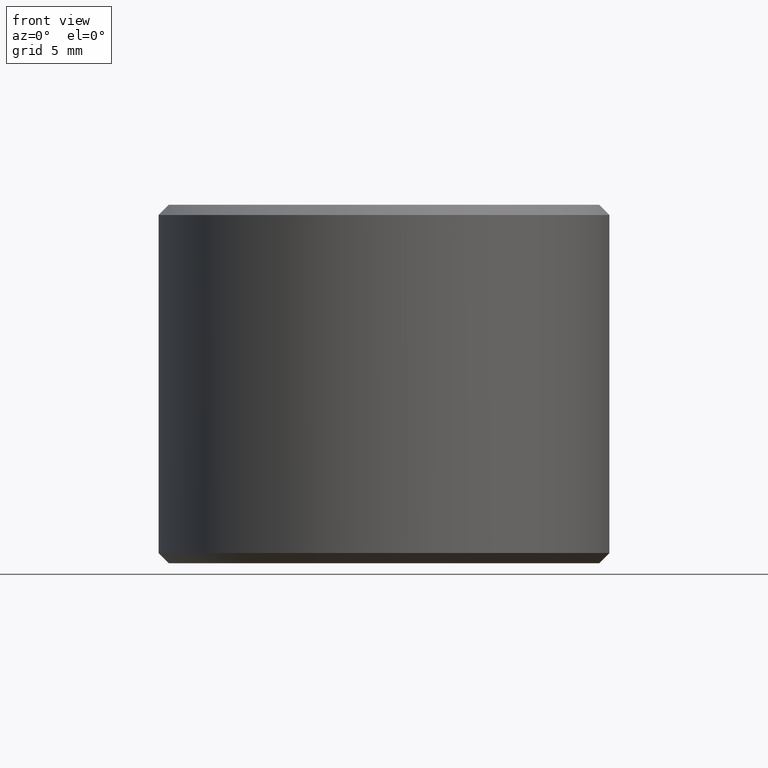
[diagram: clean part render]
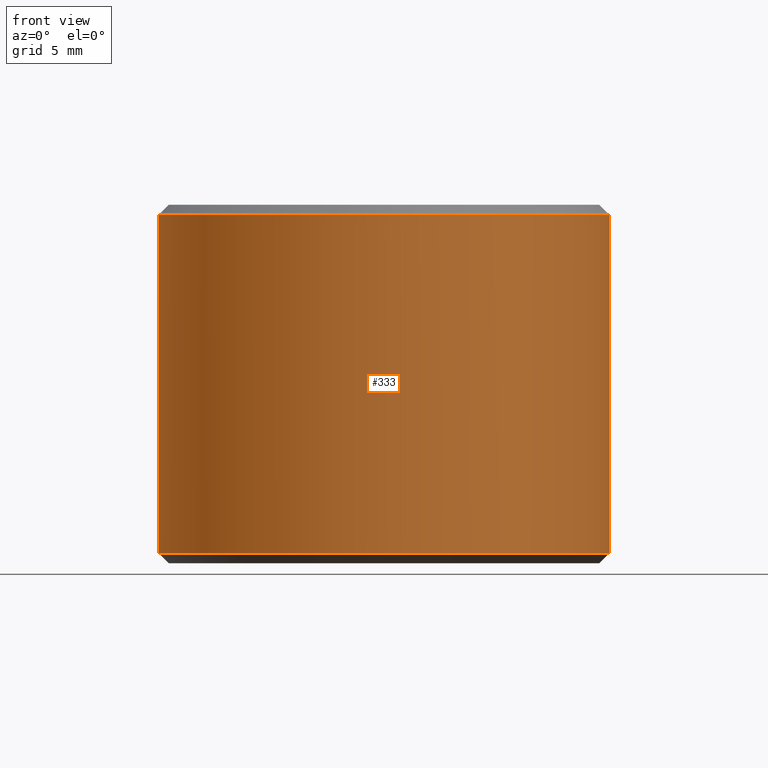
[diagram: same view with one face highlighted and labeled with its STEP entity id]
A machine part, front view. The second image highlights one B-rep face of the part: STEP entity #333.
In plain terms, the highlighted cylindrical surface (partial cylindrical patch) has radius 11 mm, axis along (-0, -0, 1).
Its self-contained STEP definition (entity closure, byte-faithful):
#3 = DIRECTION ( 'NONE',  ( -0.0000000000000000000, -0.0000000000000000000, 1.000000000000000000 ) ) ;
#25 = AXIS2_PLACEMENT_3D ( 'NONE', #180, #100, #320 ) ;
#36 = VERTEX_POINT ( 'NONE', #75 ) ;
#39 = VERTEX_POINT ( 'NONE', #102 ) ;
#41 = LINE ( 'NONE', #229, #224 ) ;
#46 = EDGE_CURVE ( 'NONE', #290, #39, #238, .T. ) ;
#51 = CYLINDRICAL_SURFACE ( 'NONE', #272, 11.00000000000006600 ) ;
#75 = CARTESIAN_POINT ( 'NONE',  ( -11.00000000000006600, 1.347111479062096500E-015, 0.4999999999997228900 ) ) ;
#90 = EDGE_CURVE ( 'NONE', #334, #39, #214, .T. ) ;
#100 = DIRECTION ( 'NONE',  ( -0.0000000000000000000, -0.0000000000000000000, 1.000000000000000000 ) ) ;
#102 = CARTESIAN_POINT ( 'NONE',  ( 11.00000000000006400, 0.0000000000000000000, 17.00000000000044400 ) ) ;
#103 = DIRECTION ( 'NONE',  ( -0.0000000000000000000, -0.0000000000000000000, 1.000000000000000000 ) ) ;
#118 = DIRECTION ( 'NONE',  ( -0.0000000000000000000, -0.0000000000000000000, 1.000000000000000000 ) ) ;
#121 = VECTOR ( 'NONE', #103, 1000.000000000000000 ) ;
#122 = CIRCLE ( 'NONE', #25, 11.00000000000006600 ) ;
#123 = CARTESIAN_POINT ( 'NONE',  ( 11.00000000000006600, 0.0000000000000000000, 116.0570158932235600 ) ) ;
#135 = EDGE_LOOP ( 'NONE', ( #280, #142, #332, #221 ) ) ;
#142 = ORIENTED_EDGE ( 'NONE', *, *, #246, .T. ) ;
#171 = DIRECTION ( 'NONE',  ( 1.000000000000000000, 0.0000000000000000000, 0.0000000000000000000 ) ) ;
#180 = CARTESIAN_POINT ( 'NONE',  ( 0.0000000000000000000, 0.0000000000000000000, 0.4999999999997228900 ) ) ;
#214 = CIRCLE ( 'NONE', #276, 11.00000000000006400 ) ;
#221 = ORIENTED_EDGE ( 'NONE', *, *, #90, .F. ) ;
#224 = VECTOR ( 'NONE', #264, 1000.000000000000000 ) ;
#229 = CARTESIAN_POINT ( 'NONE',  ( -11.00000000000006600, 1.347111479062096500E-015, 116.0570158932235600 ) ) ;
#238 = LINE ( 'NONE', #123, #121 ) ;
#246 = EDGE_CURVE ( 'NONE', #36, #290, #122, .T. ) ;
#261 = CARTESIAN_POINT ( 'NONE',  ( 11.00000000000006600, 0.0000000000000000000, 0.4999999999997228900 ) ) ;
#264 = DIRECTION ( 'NONE',  ( -0.0000000000000000000, -0.0000000000000000000, 1.000000000000000000 ) ) ;
#269 = EDGE_CURVE ( 'NONE', #36, #334, #41, .T. ) ;
#272 = AXIS2_PLACEMENT_3D ( 'NONE', #289, #118, #171 ) ;
#276 = AXIS2_PLACEMENT_3D ( 'NONE', #330, #3, #305 ) ;
#280 = ORIENTED_EDGE ( 'NONE', *, *, #269, .F. ) ;
#287 = FACE_OUTER_BOUND ( 'NONE', #135, .T. ) ;
#289 = CARTESIAN_POINT ( 'NONE',  ( 0.0000000000000000000, 0.0000000000000000000, 116.0570158932235600 ) ) ;
#290 = VERTEX_POINT ( 'NONE', #261 ) ;
#305 = DIRECTION ( 'NONE',  ( 1.000000000000000000, 0.0000000000000000000, 0.0000000000000000000 ) ) ;
#320 = DIRECTION ( 'NONE',  ( 1.000000000000000000, 0.0000000000000000000, 0.0000000000000000000 ) ) ;
#330 = CARTESIAN_POINT ( 'NONE',  ( 0.0000000000000000000, 0.0000000000000000000, 17.00000000000044400 ) ) ;
#332 = ORIENTED_EDGE ( 'NONE', *, *, #46, .T. ) ;
#333 = ADVANCED_FACE ( 'NONE', ( #287 ), #51, .T. ) ;
#334 = VERTEX_POINT ( 'NONE', #336 ) ;
#336 = CARTESIAN_POINT ( 'NONE',  ( -11.00000000000006400, 1.347111479062096300E-015, 17.00000000000044400 ) ) ;